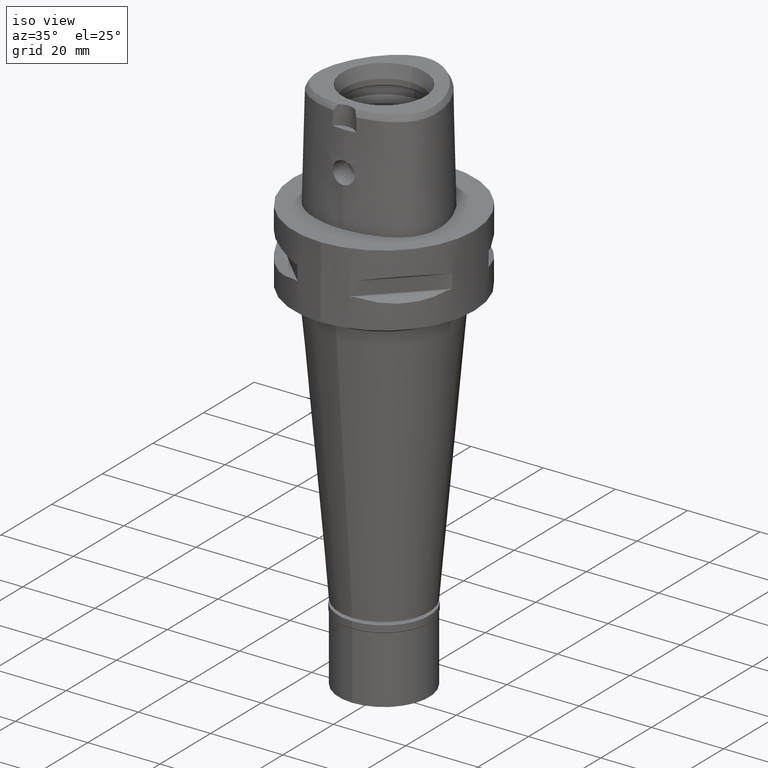
[diagram: clean part render]
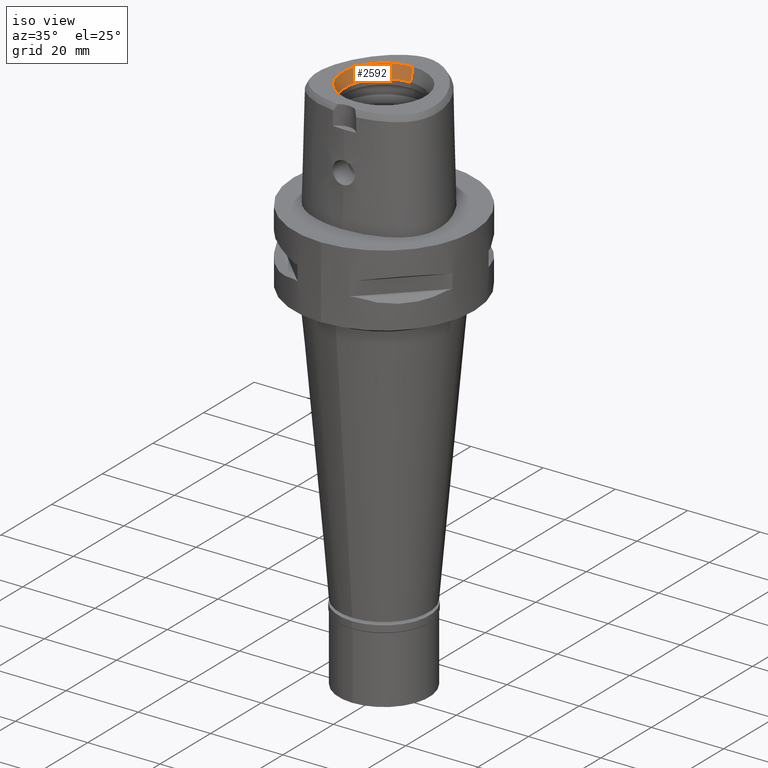
[diagram: same view with one face highlighted and labeled with its STEP entity id]
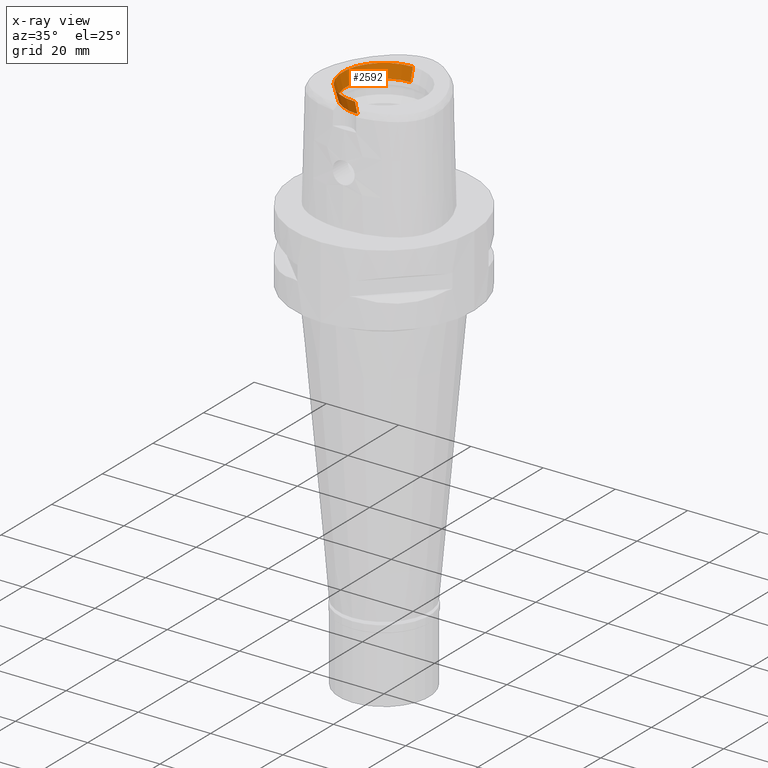
[diagram: x-ray of the same camera — body ghosted, the highlighted face saturated]
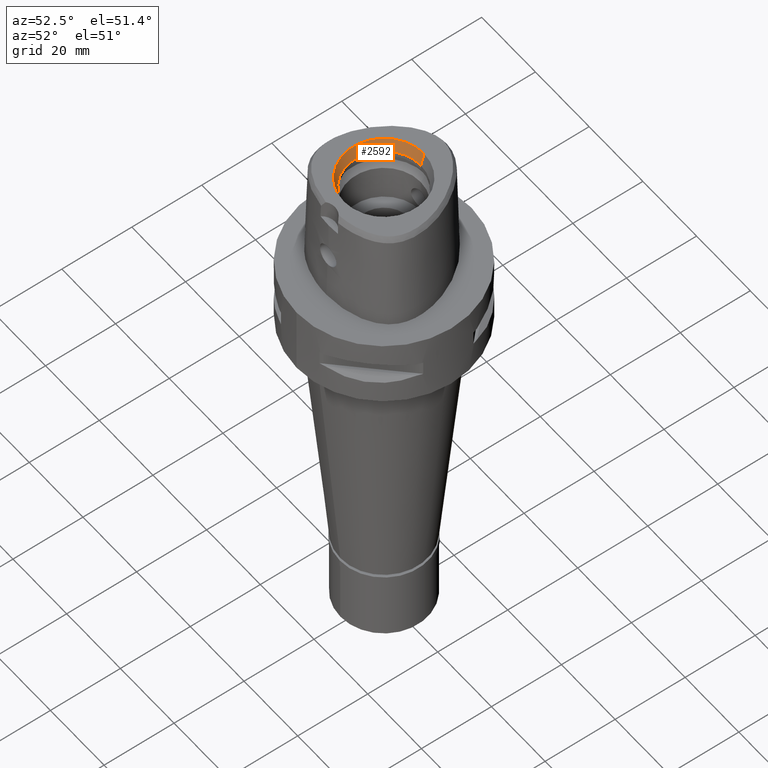
[diagram: same view with one face highlighted and labeled with its STEP entity id]
A machine part, iso view. The second image highlights one B-rep face of the part: STEP entity #2592.
The next image is the same camera in x-ray: the body ghosted, the highlighted face saturated — about 0% of this face is hidden behind the body in this view.
A second angle (auxiliary view) of the same face is appended — the face is thin or edge-on in the first view.
In plain terms, the highlighted conical surface has half-angle 15 deg.
Its self-contained STEP definition (entity closure, byte-faithful):
#55 = LINE ( 'NONE', #82, #4300 ) ;
#82 = CARTESIAN_POINT ( 'NONE',  ( 0.0000000000000000000, 10.50000000000000000, 26.50000000000000000 ) ) ;
#376 = EDGE_CURVE ( 'NONE', #3947, #1844, #4722, .T. ) ;
#432 = CARTESIAN_POINT ( 'NONE',  ( 0.0000000000000000000, 11.43782217350000074, 30.00000000000000000 ) ) ;
#831 = DIRECTION ( 'NONE',  ( 0.0000000000000000000, 1.000000000000000000, 0.0000000000000000000 ) ) ;
#1335 = CARTESIAN_POINT ( 'NONE',  ( 0.0000000000000000000, -11.43782217350000074, 30.00000000000000000 ) ) ;
#1423 = AXIS2_PLACEMENT_3D ( 'NONE', #3772, #1882, #2627 ) ;
#1467 = FACE_OUTER_BOUND ( 'NONE', #4648, .T. ) ;
#1482 = DIRECTION ( 'NONE',  ( 0.0000000000000000000, -0.2588190451023999472, 0.9659258262891006197 ) ) ;
#1594 = VECTOR ( 'NONE', #1482, 1000.000000000000114 ) ;
#1844 = VERTEX_POINT ( 'NONE', #1335 ) ;
#1882 = DIRECTION ( 'NONE',  ( 0.0000000000000000000, 0.0000000000000000000, 1.000000000000000000 ) ) ;
#1996 = VERTEX_POINT ( 'NONE', #2215 ) ;
#2215 = CARTESIAN_POINT ( 'NONE',  ( 0.0000000000000000000, 10.50000000000000000, 26.50000000000000000 ) ) ;
#2241 = CARTESIAN_POINT ( 'NONE',  ( 0.0000000000000000000, 1.570609519905999910E-14, 28.25000000000000000 ) ) ;
#2296 = ORIENTED_EDGE ( 'NONE', *, *, #376, .T. ) ;
#2306 = CONICAL_SURFACE ( 'NONE', #2690, 10.96891108674999948, 0.2617993877991000029 ) ;
#2344 = EDGE_CURVE ( 'NONE', #1996, #3947, #55, .T. ) ;
#2419 = DIRECTION ( 'NONE',  ( 0.0000000000000000000, 0.2588190451023999472, 0.9659258262891006197 ) ) ;
#2426 = ORIENTED_EDGE ( 'NONE', *, *, #3223, .F. ) ;
#2561 = AXIS2_PLACEMENT_3D ( 'NONE', #3065, #4592, #831 ) ;
#2592 = ADVANCED_FACE ( 'NONE', ( #1467 ), #2306, .F. ) ;
#2627 = DIRECTION ( 'NONE',  ( 0.0000000000000000000, 1.000000000000000000, 0.0000000000000000000 ) ) ;
#2652 = CARTESIAN_POINT ( 'NONE',  ( 0.0000000000000000000, -10.50000000000000000, 26.50000000000000000 ) ) ;
#2690 = AXIS2_PLACEMENT_3D ( 'NONE', #2241, #3419, #3781 ) ;
#2851 = CIRCLE ( 'NONE', #1423, 10.50000000000000000 ) ;
#3065 = CARTESIAN_POINT ( 'NONE',  ( 0.0000000000000000000, 1.570609519905999910E-14, 30.00000000000000000 ) ) ;
#3223 = EDGE_CURVE ( 'NONE', #3735, #1844, #4910, .T. ) ;
#3291 = EDGE_CURVE ( 'NONE', #1996, #3735, #2851, .T. ) ;
#3380 = ORIENTED_EDGE ( 'NONE', *, *, #3291, .F. ) ;
#3419 = DIRECTION ( 'NONE',  ( 0.0000000000000000000, 0.0000000000000000000, 1.000000000000000000 ) ) ;
#3667 = ORIENTED_EDGE ( 'NONE', *, *, #2344, .T. ) ;
#3716 = CARTESIAN_POINT ( 'NONE',  ( 0.0000000000000000000, -10.50000000000000000, 26.50000000000000000 ) ) ;
#3735 = VERTEX_POINT ( 'NONE', #3716 ) ;
#3772 = CARTESIAN_POINT ( 'NONE',  ( 0.0000000000000000000, 1.570609519905999910E-14, 26.50000000000000000 ) ) ;
#3781 = DIRECTION ( 'NONE',  ( 0.0000000000000000000, 1.000000000000000000, 0.0000000000000000000 ) ) ;
#3947 = VERTEX_POINT ( 'NONE', #432 ) ;
#4300 = VECTOR ( 'NONE', #2419, 1000.000000000000114 ) ;
#4592 = DIRECTION ( 'NONE',  ( 0.0000000000000000000, 0.0000000000000000000, 1.000000000000000000 ) ) ;
#4648 = EDGE_LOOP ( 'NONE', ( #2426, #3380, #3667, #2296 ) ) ;
#4722 = CIRCLE ( 'NONE', #2561, 11.43782217350000074 ) ;
#4910 = LINE ( 'NONE', #2652, #1594 ) ;